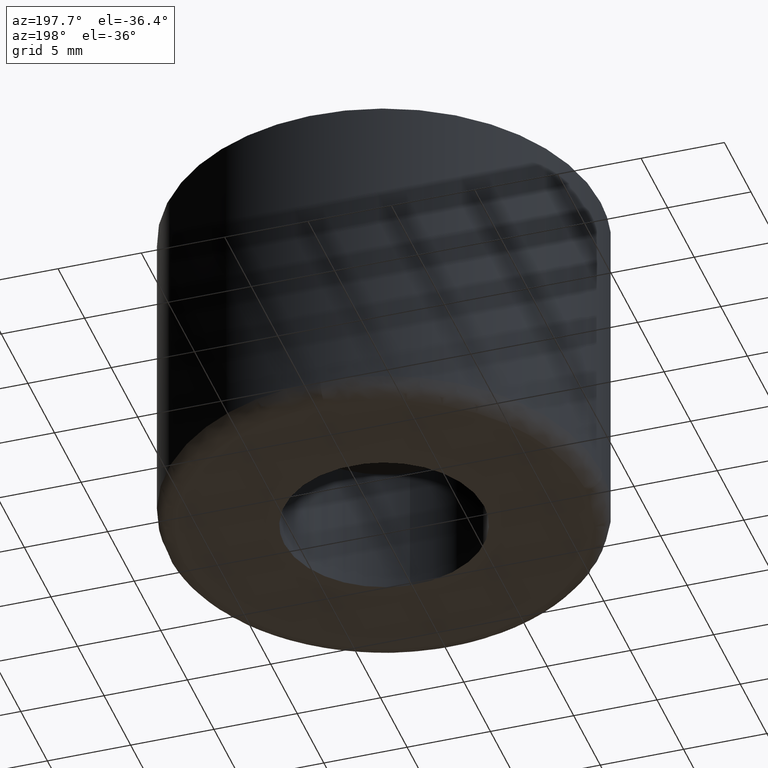
[diagram: clean part render]
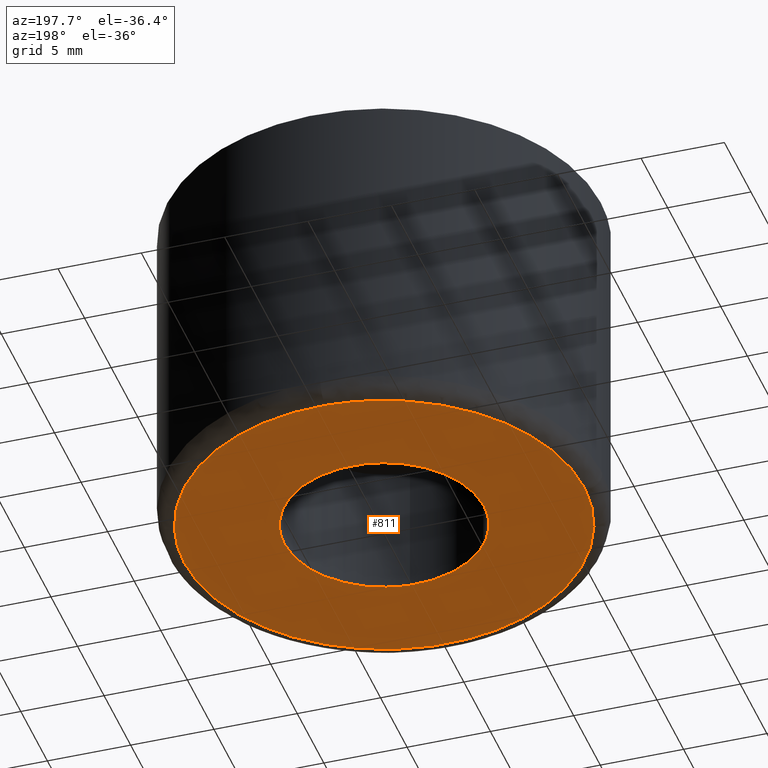
[diagram: same view with one face highlighted and labeled with its STEP entity id]
A machine part, auxiliary view. The second image highlights one B-rep face of the part: STEP entity #811.
In plain terms, the highlighted face is a freeform B-spline surface patch.
Its self-contained STEP definition (entity closure, byte-faithful):
#476=CARTESIAN_POINT('',(-0.708196321017467,5.958058238286496,-4.117171E-016));
#477=VERTEX_POINT('',#476);
#478=CARTESIAN_POINT('',(6.0,0.0,0.0));
#479=VERTEX_POINT('',#478);
#480=CARTESIAN_POINT('',(-0.708196321017467,5.958058238286496,-4.117171E-016));
#481=CARTESIAN_POINT('',(-0.355340126418063,6.0,0.0));
#482=CARTESIAN_POINT('',(0.0,6.0,0.0));
#483=CARTESIAN_POINT('',(6.0,6.0,0.0));
#484=CARTESIAN_POINT('',(6.0,0.0,0.0));
#492=(BOUNDED_CURVE()B_SPLINE_CURVE(2,(#480,#481,#482,#483,#484),.UNSPECIFIED.,.F.,.U.)B_SPLINE_CURVE_WITH_KNOTS((3,2,3),(0.229562731270752,0.250000000000000,0.500000000000000),.UNSPECIFIED.)CURVE()GEOMETRIC_REPRESENTATION_ITEM()RATIONAL_B_SPLINE_CURVE((0.956027259399068,0.976056250312540,1.0,0.707106781186548,1.0))REPRESENTATION_ITEM(''));
#493=EDGE_CURVE('',#477,#479,#492,.T.);
#495=CARTESIAN_POINT('',(0.366281832401029,-5.988809365739083,-1.629252E-014));
#496=VERTEX_POINT('',#495);
#497=CARTESIAN_POINT('',(6.0,0.0,0.0));
#498=CARTESIAN_POINT('',(6.0,-5.644245281695966,0.0));
#499=CARTESIAN_POINT('',(0.366281832401029,-5.988809365739083,-1.629252E-014));
#507=(BOUNDED_CURVE()B_SPLINE_CURVE(2,(#497,#498,#499),.UNSPECIFIED.,.F.,.U.)B_SPLINE_CURVE_WITH_KNOTS((3,3),(0.500000000000000,0.739333233209006),.UNSPECIFIED.)CURVE()GEOMETRIC_REPRESENTATION_ITEM()RATIONAL_B_SPLINE_CURVE((1.0,0.719603675825535,0.976072622407832))REPRESENTATION_ITEM(''));
#508=EDGE_CURVE('',#479,#496,#507,.T.);
#579=CARTESIAN_POINT('',(-6.0,0.0,0.0));
#580=VERTEX_POINT('',#579);
#581=CARTESIAN_POINT('',(-6.0,0.0,0.0));
#582=CARTESIAN_POINT('',(-5.999999999999999,5.329055340517229,0.0));
#583=CARTESIAN_POINT('',(-0.708196321017467,5.958058238286496,-4.117171E-016));
#591=(BOUNDED_CURVE()B_SPLINE_CURVE(2,(#581,#582,#583),.UNSPECIFIED.,.F.,.U.)B_SPLINE_CURVE_WITH_KNOTS((3,3),(0.0,0.229562731270752),.UNSPECIFIED.)CURVE()GEOMETRIC_REPRESENTATION_ITEM()RATIONAL_B_SPLINE_CURVE((1.0,0.731050530874008,0.956027259399068))REPRESENTATION_ITEM(''));
#592=EDGE_CURVE('',#580,#477,#591,.T.);
#626=CARTESIAN_POINT('',(0.366281832401029,-5.988809365739083,-1.629252E-014));
#627=CARTESIAN_POINT('',(0.183311864202960,-6.0,0.0));
#628=CARTESIAN_POINT('',(0.0,-6.0,0.0));
#629=CARTESIAN_POINT('',(-6.0,-6.0,0.0));
#630=CARTESIAN_POINT('',(-6.0,0.0,0.0));
#638=(BOUNDED_CURVE()B_SPLINE_CURVE(2,(#626,#627,#628,#629,#630),.UNSPECIFIED.,.F.,.U.)B_SPLINE_CURVE_WITH_KNOTS((3,2,3),(0.739333233209006,0.750000000000000,1.0),.UNSPECIFIED.)CURVE()GEOMETRIC_REPRESENTATION_ITEM()RATIONAL_B_SPLINE_CURVE((0.976072622407832,0.987503105361013,1.0,0.707106781186548,1.0))REPRESENTATION_ITEM(''));
#639=EDGE_CURVE('',#496,#580,#638,.T.);
#673=CARTESIAN_POINT('',(-0.301561146003583,11.996210305784739,1.557101E-014));
#674=VERTEX_POINT('',#673);
#675=CARTESIAN_POINT('',(12.0,0.0,0.0));
#676=VERTEX_POINT('',#675);
#677=CARTESIAN_POINT('',(-0.301561146003583,11.996210305784739,1.557101E-014));
#678=CARTESIAN_POINT('',(-0.150804385299742,12.000000000000004,1.421085E-014));
#679=CARTESIAN_POINT('',(0.0,12.0,1.421085E-014));
#680=CARTESIAN_POINT('',(12.0,12.0,1.421085E-014));
#681=CARTESIAN_POINT('',(12.0,0.0,1.421085E-014));
#689=(BOUNDED_CURVE()B_SPLINE_CURVE(2,(#677,#678,#679,#680,#681),.UNSPECIFIED.,.F.,.U.)B_SPLINE_CURVE_WITH_KNOTS((3,2,3),(0.245579891775080,0.250000000000000,0.500000000000000),.UNSPECIFIED.)CURVE()GEOMETRIC_REPRESENTATION_ITEM()RATIONAL_B_SPLINE_CURVE((0.989826157693493,0.994821521097997,1.0,0.707106781186548,1.0))REPRESENTATION_ITEM(''));
#690=EDGE_CURVE('',#674,#676,#689,.T.);
#709=CARTESIAN_POINT('',(-11.996209041027869,-0.301561114222903,1.529176E-012));
#710=VERTEX_POINT('',#709);
#724=CARTESIAN_POINT('',(12.0,0.0,0.0));
#725=CARTESIAN_POINT('',(12.000000007731089,-11.999999999805656,9.608599E-015));
#726=CARTESIAN_POINT('',(0.000000622919063,-11.999999984341040,7.741964E-013));
#727=CARTESIAN_POINT('',(-11.702133291494871,-11.999999969260285,1.519805E-012));
#728=CARTESIAN_POINT('',(-11.996209041027868,-0.301561114222903,1.529176E-012));
#736=(BOUNDED_CURVE()B_SPLINE_CURVE(2,(#724,#725,#726,#727,#728),.UNSPECIFIED.,.F.,.U.)B_SPLINE_CURVE_WITH_KNOTS((3,2,3),(0.500000000000000,0.750000000000000,0.995579891772257),.UNSPECIFIED.)CURVE()GEOMETRIC_REPRESENTATION_ITEM()RATIONAL_B_SPLINE_CURVE((1.0,0.707106781186548,1.0,0.712285260091858,0.989826157687112))REPRESENTATION_ITEM(''));
#737=EDGE_CURVE('',#676,#710,#736,.T.);
#759=CARTESIAN_POINT('',(-12.0,0.0,1.421085E-014));
#760=VERTEX_POINT('',#759);
#761=CARTESIAN_POINT('',(-12.0,0.0,1.421085E-014));
#762=CARTESIAN_POINT('',(-12.0,11.702134514520491,1.421085E-014));
#763=CARTESIAN_POINT('',(-0.301561146003583,11.996210305784739,1.557101E-014));
#771=(BOUNDED_CURVE()B_SPLINE_CURVE(2,(#761,#762,#763),.UNSPECIFIED.,.F.,.U.)B_SPLINE_CURVE_WITH_KNOTS((3,3),(0.0,0.245579891775080),.UNSPECIFIED.)CURVE()GEOMETRIC_REPRESENTATION_ITEM()RATIONAL_B_SPLINE_CURVE((1.0,0.712285260088550,0.989826157693493))REPRESENTATION_ITEM(''));
#772=EDGE_CURVE('',#760,#674,#771,.T.);
#774=CARTESIAN_POINT('',(-11.996209041027866,-0.301561114222903,1.529176E-012));
#775=CARTESIAN_POINT('',(-11.999999384812023,-0.150804369931942,7.716932E-013));
#776=CARTESIAN_POINT('',(-12.0,0.0,1.421085E-014));
#784=(BOUNDED_CURVE()B_SPLINE_CURVE(2,(#774,#775,#776),.UNSPECIFIED.,.F.,.U.)B_SPLINE_CURVE_WITH_KNOTS((3,3),(0.995579891772257,1.0),.UNSPECIFIED.)CURVE()GEOMETRIC_REPRESENTATION_ITEM()RATIONAL_B_SPLINE_CURVE((0.989826157687112,0.994821521094690,1.0))REPRESENTATION_ITEM(''));
#785=EDGE_CURVE('',#710,#760,#784,.T.);
#794=CARTESIAN_POINT('',(-13.198799953483340,-13.197616487839481,7.105427E-015));
#795=CARTESIAN_POINT('',(13.198800597213509,-13.197616487839481,7.105427E-015));
#796=CARTESIAN_POINT('',(-13.198799953483340,13.194774311294660,7.105427E-015));
#797=CARTESIAN_POINT('',(13.198800597213509,13.194774311294660,7.105427E-015));
#798=B_SPLINE_SURFACE_WITH_KNOTS('',1,1,((#794,#796),(#795,#797)),.UNSPECIFIED.,.F.,.F.,.U.,(2,2),(2,2),(0.0,26.397600550696851),(0.0,26.392390799134130),.UNSPECIFIED.);
#799=ORIENTED_EDGE('',*,*,#772,.T.);
#800=ORIENTED_EDGE('',*,*,#690,.T.);
#801=ORIENTED_EDGE('',*,*,#737,.T.);
#802=ORIENTED_EDGE('',*,*,#785,.T.);
#803=EDGE_LOOP('',(#799,#800,#801,#802));
#804=FACE_OUTER_BOUND('',#803,.T.);
#805=ORIENTED_EDGE('',*,*,#508,.F.);
#806=ORIENTED_EDGE('',*,*,#493,.F.);
#807=ORIENTED_EDGE('',*,*,#592,.F.);
#808=ORIENTED_EDGE('',*,*,#639,.F.);
#809=EDGE_LOOP('',(#805,#806,#807,#808));
#810=FACE_BOUND('',#809,.T.);
#811=ADVANCED_FACE('',(#804,#810),#798,.F.);